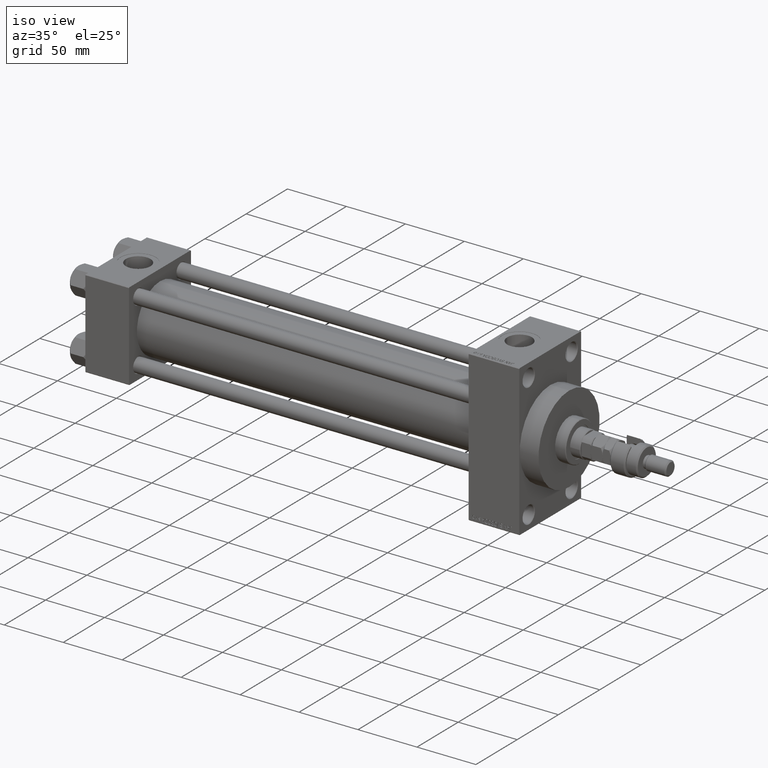
[diagram: clean part render]
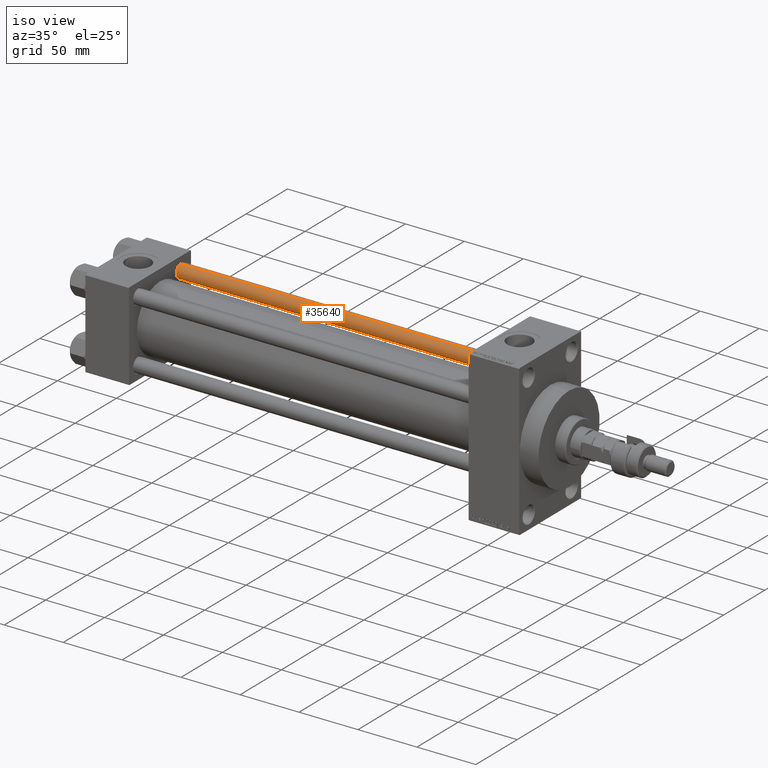
[diagram: same view with one face highlighted and labeled with its STEP entity id]
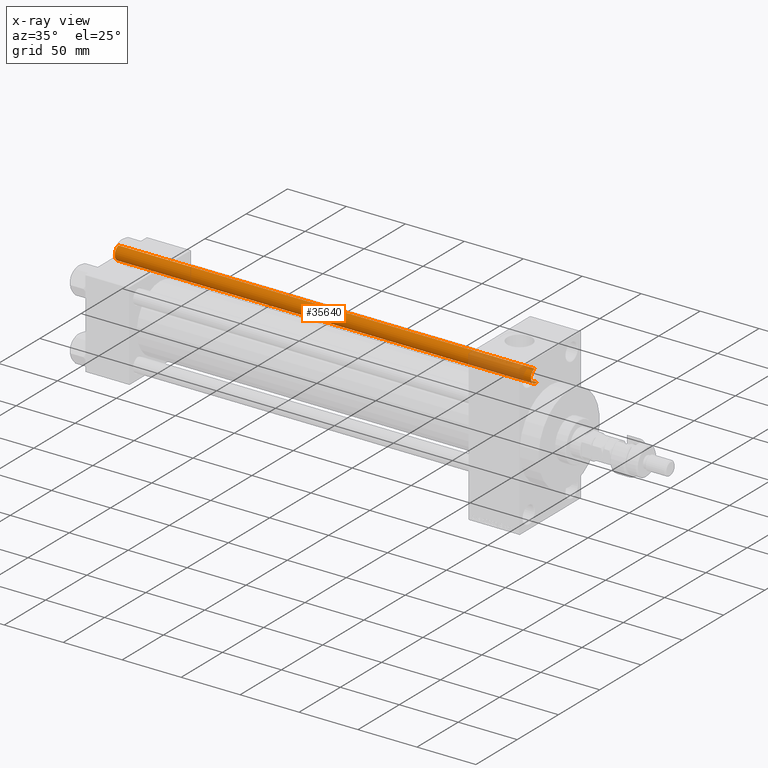
[diagram: x-ray of the same camera — body ghosted, the highlighted face saturated]
A machine part, iso view. The second image highlights one B-rep face of the part: STEP entity #35640.
The next image is the same camera in x-ray: the body ghosted, the highlighted face saturated — about 14% of this face is hidden behind the body in this view.
In plain terms, the highlighted cylindrical surface (edge-blend (fillet) strip) has radius 6 mm, axis along (-1, -0, 0).
Its self-contained STEP definition (entity closure, byte-faithful):
#246 = VERTEX_POINT ( 'NONE', #36399 ) ;
#1790 = CARTESIAN_POINT ( 'NONE',  ( 0.000000000000000000, 0.000000000000000000, 353.5000000000000000 ) ) ;
#2087 = VERTEX_POINT ( 'NONE', #33481 ) ;
#2610 = AXIS2_PLACEMENT_3D ( 'NONE', #30545, #18664, #11555 ) ;
#3059 = EDGE_CURVE ( 'NONE', #41217, #26595, #18924, .T. ) ;
#4841 = DIRECTION ( 'NONE',  ( 0.000000000000000000, 0.000000000000000000, -1.000000000000000000 ) ) ;
#5028 = ORIENTED_EDGE ( 'NONE', *, *, #40340, .T. ) ;
#5263 = LINE ( 'NONE', #12830, #39747 ) ;
#5792 = CARTESIAN_POINT ( 'NONE',  ( -6.000000000000000888, 0.000000000000000000, 353.5000000000000000 ) ) ;
#6250 = ORIENTED_EDGE ( 'NONE', *, *, #33178, .F. ) ;
#7291 = FACE_OUTER_BOUND ( 'NONE', #19732, .T. ) ;
#9788 = DIRECTION ( 'NONE',  ( -0.000000000000000000, -0.000000000000000000, -1.000000000000000000 ) ) ;
#11555 = DIRECTION ( 'NONE',  ( -1.000000000000000000, 0.000000000000000000, 0.000000000000000000 ) ) ;
#12830 = CARTESIAN_POINT ( 'NONE',  ( 6.000000000000000888, 7.347880794884120722E-16, 354.0000000000000000 ) ) ;
#16767 = VECTOR ( 'NONE', #9788, 1000.000000000000000 ) ;
#18129 = AXIS2_PLACEMENT_3D ( 'NONE', #1790, #4841, #24281 ) ;
#18664 = DIRECTION ( 'NONE',  ( -0.000000000000000000, -0.000000000000000000, -1.000000000000000000 ) ) ;
#18924 = CIRCLE ( 'NONE', #18129, 6.000000000000000888 ) ;
#19151 = CYLINDRICAL_SURFACE ( 'NONE', #2610, 6.000000000000000888 ) ;
#19732 = EDGE_LOOP ( 'NONE', ( #6250, #31697, #5028, #32378 ) ) ;
#20442 = DIRECTION ( 'NONE',  ( -0.000000000000000000, -0.000000000000000000, 1.000000000000000000 ) ) ;
#22135 = EDGE_CURVE ( 'NONE', #246, #2087, #34524, .T. ) ;
#24281 = DIRECTION ( 'NONE',  ( 1.000000000000000000, 0.000000000000000000, 0.000000000000000000 ) ) ;
#26595 = VERTEX_POINT ( 'NONE', #5792 ) ;
#28017 = LINE ( 'NONE', #40399, #16767 ) ;
#30545 = CARTESIAN_POINT ( 'NONE',  ( 0.000000000000000000, 0.000000000000000000, 354.0000000000000000 ) ) ;
#31697 = ORIENTED_EDGE ( 'NONE', *, *, #3059, .T. ) ;
#32080 = DIRECTION ( 'NONE',  ( 1.000000000000000000, 0.000000000000000000, 0.000000000000000000 ) ) ;
#32378 = ORIENTED_EDGE ( 'NONE', *, *, #22135, .T. ) ;
#33178 = EDGE_CURVE ( 'NONE', #41217, #2087, #5263, .T. ) ;
#33481 = CARTESIAN_POINT ( 'NONE',  ( 6.000000000000000888, 7.347880794884120722E-16, 0.5000000000000559552 ) ) ;
#34524 = CIRCLE ( 'NONE', #36966, 6.000000000000000888 ) ;
#35616 = CARTESIAN_POINT ( 'NONE',  ( 0.000000000000000000, 0.000000000000000000, 0.5000000000000559552 ) ) ;
#35640 = ADVANCED_FACE ( 'NONE', ( #7291 ), #19151, .T. ) ;
#36399 = CARTESIAN_POINT ( 'NONE',  ( -6.000000000000000888, 0.000000000000000000, 0.5000000000000559552 ) ) ;
#36966 = AXIS2_PLACEMENT_3D ( 'NONE', #35616, #20442, #32080 ) ;
#39747 = VECTOR ( 'NONE', #40141, 1000.000000000000000 ) ;
#40141 = DIRECTION ( 'NONE',  ( -0.000000000000000000, -0.000000000000000000, -1.000000000000000000 ) ) ;
#40340 = EDGE_CURVE ( 'NONE', #26595, #246, #28017, .T. ) ;
#40399 = CARTESIAN_POINT ( 'NONE',  ( -6.000000000000000888, 0.000000000000000000, 354.0000000000000000 ) ) ;
#41217 = VERTEX_POINT ( 'NONE', #44957 ) ;
#44957 = CARTESIAN_POINT ( 'NONE',  ( 6.000000000000000888, 7.347880794884120722E-16, 353.5000000000000000 ) ) ;